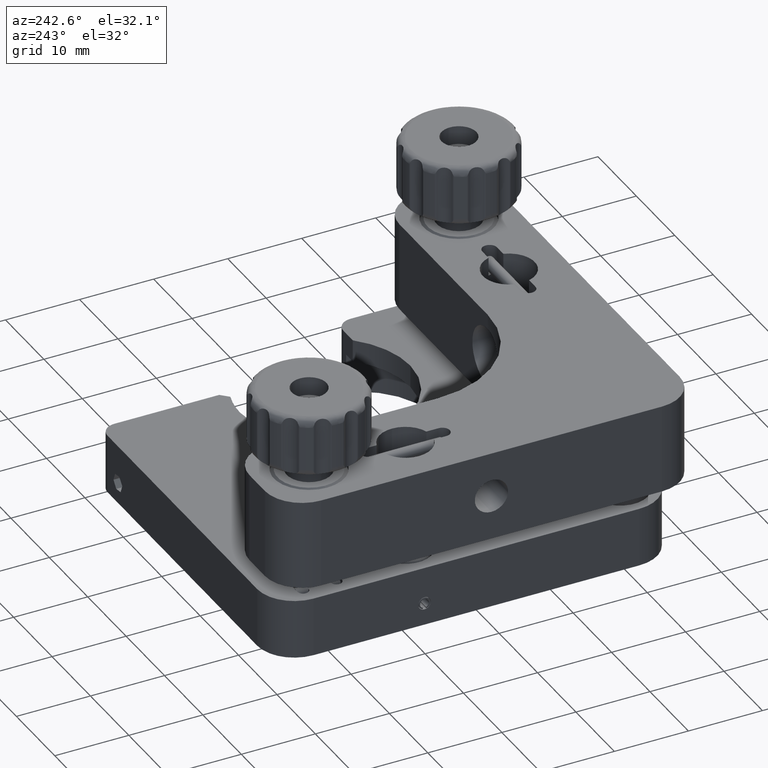
[diagram: clean part render]
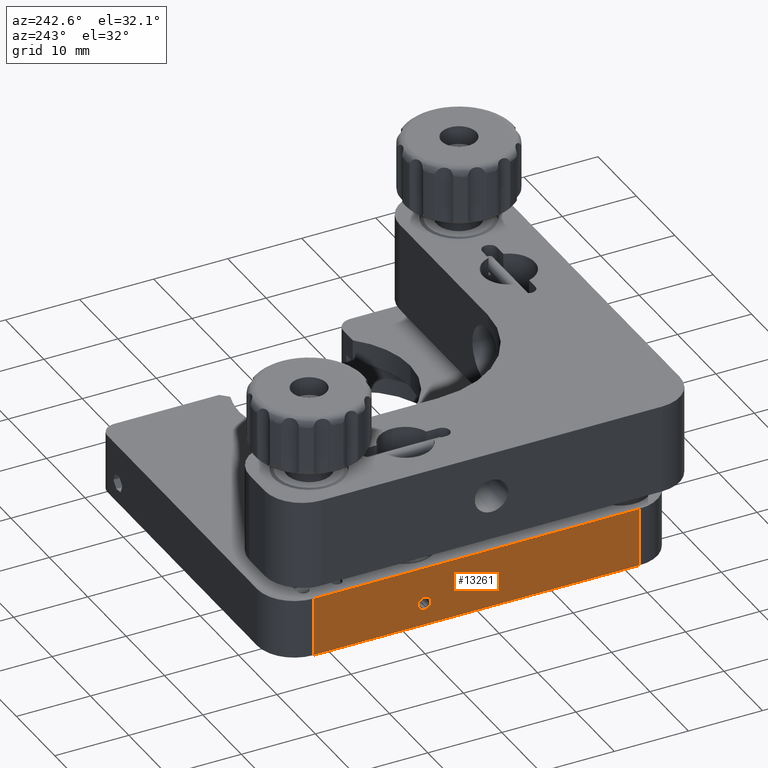
[diagram: same view with one face highlighted and labeled with its STEP entity id]
A machine part, auxiliary view. The second image highlights one B-rep face of the part: STEP entity #13261.
In plain terms, the highlighted planar face has unit normal (-1, -0, 0).
Its self-contained STEP definition (entity closure, byte-faithful):
#480 = DIRECTION ( 'NONE',  ( 0.0000000000000000000, -1.000000000000000000, 0.0000000000000000000 ) ) ;
#598 = LINE ( 'NONE', #8337, #9092 ) ;
#1794 = EDGE_CURVE ( 'NONE', #7657, #10397, #3446, .T. ) ;
#2365 = EDGE_CURVE ( 'NONE', #17194, #5500, #6942, .T. ) ;
#2554 = DIRECTION ( 'NONE',  ( 3.942553354492744000E-016, -1.000000000000000000, 0.0000000000000000000 ) ) ;
#2900 = FACE_BOUND ( 'NONE', #18812, .T. ) ;
#2914 = CARTESIAN_POINT ( 'NONE',  ( -26.00000000000000700, 23.00000000000000000, -18.00000000000000400 ) ) ;
#3267 = ORIENTED_EDGE ( 'NONE', *, *, #3917, .F. ) ;
#3446 = CIRCLE ( 'NONE', #19714, 0.8500000000000130800 ) ;
#3666 = VERTEX_POINT ( 'NONE', #14558 ) ;
#3818 = CARTESIAN_POINT ( 'NONE',  ( -26.00000000000000000, 8.850000000000013900, -15.00000000000000000 ) ) ;
#3917 = EDGE_CURVE ( 'NONE', #3666, #17194, #598, .T. ) ;
#4507 = DIRECTION ( 'NONE',  ( -1.000000000000000000, -3.942553354492744000E-016, 0.0000000000000000000 ) ) ;
#5500 = VERTEX_POINT ( 'NONE', #16891 ) ;
#6043 = PLANE ( 'NONE',  #13215 ) ;
#6650 = DIRECTION ( 'NONE',  ( 0.0000000000000000000, 0.0000000000000000000, 1.000000000000000000 ) ) ;
#6818 = DIRECTION ( 'NONE',  ( -1.000000000000000000, -3.942553354492744000E-016, 0.0000000000000000000 ) ) ;
#6942 = LINE ( 'NONE', #13255, #19144 ) ;
#7250 = LINE ( 'NONE', #10757, #14480 ) ;
#7299 = EDGE_CURVE ( 'NONE', #3666, #11685, #16455, .T. ) ;
#7657 = VERTEX_POINT ( 'NONE', #13930 ) ;
#7719 = DIRECTION ( 'NONE',  ( 0.0000000000000000000, -1.000000000000000000, 0.0000000000000000000 ) ) ;
#8337 = CARTESIAN_POINT ( 'NONE',  ( -26.00000000000000700, 23.00000000000000000, -18.00000000000000400 ) ) ;
#9092 = VECTOR ( 'NONE', #6650, 1000.000000000000000 ) ;
#9230 = ORIENTED_EDGE ( 'NONE', *, *, #2365, .F. ) ;
#9832 = DIRECTION ( 'NONE',  ( 3.942553354492744000E-016, -1.000000000000000000, 0.0000000000000000000 ) ) ;
#10397 = VERTEX_POINT ( 'NONE', #3818 ) ;
#10757 = CARTESIAN_POINT ( 'NONE',  ( -25.99999999999998900, -20.99999999999999600, -18.00000000000000400 ) ) ;
#11132 = ORIENTED_EDGE ( 'NONE', *, *, #17942, .T. ) ;
#11685 = VERTEX_POINT ( 'NONE', #19553 ) ;
#12314 = DIRECTION ( 'NONE',  ( -1.000000000000000000, -3.942553354492744000E-016, 0.0000000000000000000 ) ) ;
#12892 = CARTESIAN_POINT ( 'NONE',  ( -26.00000000000000700, 23.00000000000000000, -18.00000000000000400 ) ) ;
#12999 = AXIS2_PLACEMENT_3D ( 'NONE', #20322, #4507, #7719 ) ;
#13215 = AXIS2_PLACEMENT_3D ( 'NONE', #2914, #12314, #20181 ) ;
#13255 = CARTESIAN_POINT ( 'NONE',  ( -26.00000000000000700, 23.00000000000000000, -10.00000000000000000 ) ) ;
#13261 = ADVANCED_FACE ( 'NONE', ( #2900, #18328 ), #6043, .T. ) ;
#13299 = CARTESIAN_POINT ( 'NONE',  ( -26.00000000000000000, 8.000000000000000000, -15.00000000000000000 ) ) ;
#13429 = CIRCLE ( 'NONE', #12999, 0.8500000000000130800 ) ;
#13930 = CARTESIAN_POINT ( 'NONE',  ( -26.00000000000000000, 7.149999999999987000, -15.00000000000000000 ) ) ;
#14480 = VECTOR ( 'NONE', #20216, 1000.000000000000000 ) ;
#14558 = CARTESIAN_POINT ( 'NONE',  ( -26.00000000000000700, 23.00000000000000000, -18.00000000000000400 ) ) ;
#15429 = CARTESIAN_POINT ( 'NONE',  ( -26.00000000000000700, 23.00000000000000000, -10.00000000000000000 ) ) ;
#15912 = ORIENTED_EDGE ( 'NONE', *, *, #20113, .F. ) ;
#16455 = LINE ( 'NONE', #12892, #19681 ) ;
#16646 = ORIENTED_EDGE ( 'NONE', *, *, #7299, .T. ) ;
#16891 = CARTESIAN_POINT ( 'NONE',  ( -25.99999999999998900, -20.99999999999999600, -10.00000000000000000 ) ) ;
#17194 = VERTEX_POINT ( 'NONE', #15429 ) ;
#17393 = ORIENTED_EDGE ( 'NONE', *, *, #1794, .F. ) ;
#17942 = EDGE_CURVE ( 'NONE', #11685, #5500, #7250, .T. ) ;
#18328 = FACE_OUTER_BOUND ( 'NONE', #20675, .T. ) ;
#18812 = EDGE_LOOP ( 'NONE', ( #17393, #15912 ) ) ;
#19144 = VECTOR ( 'NONE', #2554, 1000.000000000000000 ) ;
#19553 = CARTESIAN_POINT ( 'NONE',  ( -25.99999999999998900, -20.99999999999999600, -18.00000000000000400 ) ) ;
#19681 = VECTOR ( 'NONE', #9832, 1000.000000000000000 ) ;
#19714 = AXIS2_PLACEMENT_3D ( 'NONE', #13299, #6818, #480 ) ;
#20113 = EDGE_CURVE ( 'NONE', #10397, #7657, #13429, .T. ) ;
#20181 = DIRECTION ( 'NONE',  ( 3.942553354492744000E-016, -1.000000000000000000, 0.0000000000000000000 ) ) ;
#20216 = DIRECTION ( 'NONE',  ( 0.0000000000000000000, 0.0000000000000000000, 1.000000000000000000 ) ) ;
#20322 = CARTESIAN_POINT ( 'NONE',  ( -26.00000000000000000, 8.000000000000000000, -15.00000000000000000 ) ) ;
#20675 = EDGE_LOOP ( 'NONE', ( #9230, #3267, #16646, #11132 ) ) ;